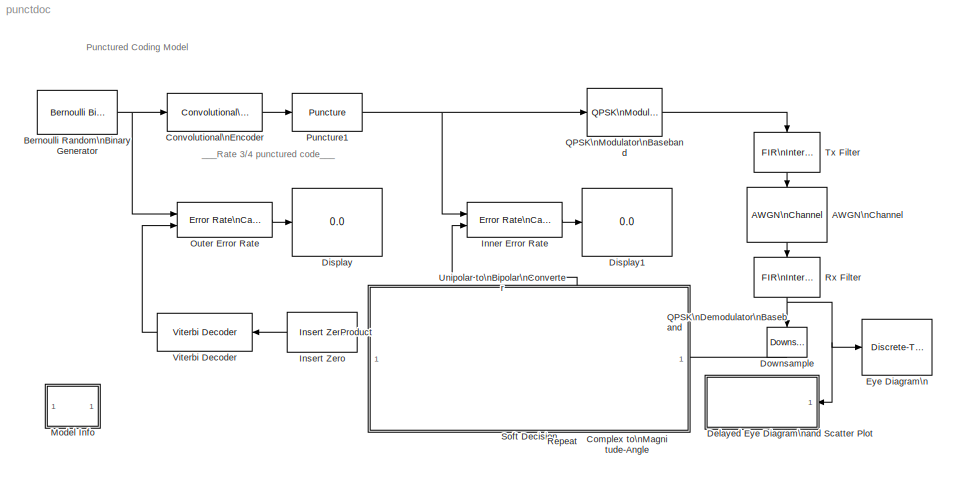
MODEL punctdoc
KIND model
BLOCK [Reference]  Unipolar to\nBipolar\nConverter  REF=commutil2/Unipolar to\nBipolar\nConverter
  M = 2
  Ports = [1, 1]
  ShowPortLabels = on
  SourceBlock = commutil2/Unipolar to\nBipolar\nConverter
  SourceType = Unipolar to Bipolar Converter
  polarity = Negative
BLOCK [Reference] AWGN\nChannel  REF=commchan2/AWGN\nChannel
  EbNodB = 10
  EsNodB = 7
  Ports = [1, 1]
  Ps = 1/8
  SNRdB = 10
  ShowPortLabels = on
  SourceBlock = commchan2/AWGN\nChannel
  SourceType = AWGN Channel
  Tsym = 3/2*5.5e-5
  bitsPerSym = 1
  noiseMode = Signal to noise ratio  (Es/No)
  seed = 123456
  variance = 1
BLOCK [Reference] Bernoulli Random\nBinary Generator  REF=commrandsrc2/Bernoulli Binary\nGenerator
  P = 0.5
  Ports = [0, 1]
  ShowPortLabels = on
  SourceBlock = commrandsrc2/Bernoulli Binary\nGenerator
  SourceType = Bernoulli Binary Generator
  Ts = 5.5e-5
  frameBased = on
  orient = off
  sampPerFrame = 3
  seed = 101
BLOCK [ComplexToMagnitudeAngle] Complex to\nMagnitude-Angle
  Output = Magnitude
  Ports = [1, 1]
BLOCK [Reference] Convolutional\nEncoder  REF=commcnvcod2/Convolutional\nEncoder
  Ports = [1, 1]
  SourceBlock = commcnvcod2/Convolutional\nEncoder
  SourceType = Convolutional Encoder
  reset = None
  trellis = poly2trellis(7, [171 133])
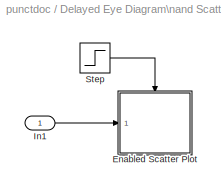
BLOCK [SubSystem] Delayed Eye Diagram\nand Scatter Plot
  EnableExecutionContextPropagation = on
  MaskDisplay = disp('Delayed Scatter Plot');
  MaskIconFrame = on
  MaskIconOpaque = on
  MaskIconRotate = none
  MaskIconUnits = autoscale
  MinAlgLoopOccurrences = off
  Ports = [1]
  TreatAsAtomicUnit = off
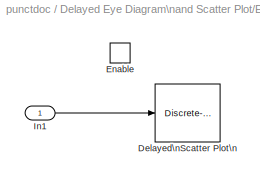
BLOCK [SubSystem] Delayed Eye Diagram\nand Scatter Plot/Enabled Scatter Plot
  EnableExecutionContextPropagation = on
  MinAlgLoopOccurrences = off
  Ports = [1, 0, 1]
  TreatAsAtomicUnit = on
BLOCK [Reference] Delayed Eye Diagram\nand Scatter Plot/Enabled Scatter Plot/Delayed\nScatter Plot\n  REF=commsink2/Discrete-Time\nScatter Plot\nScope
  AxisGrid = on
  FigPos = [435 333 358 358]
  FrameNumber = off
  LineColors = b
  LineMarkers = .
  Ports = [1]
  ShowPortLabels = on
  SourceBlock = commsink2/Discrete-Time\nScatter Plot\nScope
  SourceType = Discrete-Time Scatter Plot Scope
  Tag = ScatterPlot
  block_type_ = scatter
  fading = off
  figTitle = Scatter Plot
  inphaseLabel = In-phase Amplitude
  numLinesMax = 50
  numNewFrames = 400
  numTraces = 1000
  offsetEye = 0
  openScopeAtSimStart = on
  quadratureLabel = Quadrature Amplitude
  render = off
  sampPerSymb = 8
  xMax = 1.5
  xMin = -1.5
  yMax = 1.5
  yMin = -1.5
BLOCK [EnablePort] Delayed Eye Diagram\nand Scatter Plot/Enabled Scatter Plot/Enable
  Ports = []
BLOCK [Inport] Delayed Eye Diagram\nand Scatter Plot/Enabled Scatter Plot/In1
  IconDisplay = Port number
  LatchInput = off
BLOCK [Inport] Delayed Eye Diagram\nand Scatter Plot/In1
  IconDisplay = Port number
  LatchInput = off
BLOCK [Step] Delayed Eye Diagram\nand Scatter Plot/Step
  SampleTime = 5.5e-5
  Time = 3/2*5.5e-5*6
BLOCK [Display] Display
  Decimation = 1
  Ports = [1]
BLOCK [Display] Display1
  Decimation = 1
  Ports = [1]
BLOCK [Reference] Downsample  REF=dspsigops/Downsample
  N = 8
  Ports = [1, 1]
  SourceBlock = dspsigops/Downsample
  SourceType = Downsample
  fmode = Maintain input frame size
  ic = 0
  phase = 0
  smode = Allow multirate
BLOCK [Reference] Eye Diagram\n  REF=commsink2/Discrete-Time\nEye Diagram\nScope
  AxisGrid = on
  FigPos = figposition([2.5 55 35 35]);
  FrameNumber = off
  LineColors = r
  LineStyles = -
  Ports = [1]
  ShowPortLabels = on
  SourceBlock = commsink2/Discrete-Time\nEye Diagram\nScope
  SourceType = Discrete-Time Eye Diagram Scope
  Tag = EyeDiagram
  block_type_ = eye
  dispDiagram = In-phase and Quadrature
  dupPoints = on
  fading = on
  figTitle = Eye Diagram
  inphaseLabel = In-phase Amplitude
  numLinesMax = 50
  numNewFrames = 10
  numTraces = 40
  offsetEye = 0
  openScopeAtSimStart = off
  quadratureLabel = Quadrature Amplitude
  render = on
  sampPerSymb = 8
  symbPerTrace = 1
  yMax = 1.5
  yMin = -1.5
BLOCK [Reference] Inner Error Rate  REF=commsink2/Error Rate\nCalculation
  N = (3/2+3/2+1)*4
  PMode = Port
  Ports = [2, 1]
  RsMode2 = off
  SourceBlock = commsink2/Error Rate\nCalculation
  SourceType = Error Rate Calculation
  WsName = ErrorVec
  cp_mode = Entire frame
  maxBits = 1e6
  numErr = 300
  st_delay = 0
  stop = off
  subframe = []
BLOCK [Reference] Insert Zero  REF=commsequence2/Insert Zero
  Ports = [1, 1]
  SourceBlock = commsequence2/Insert Zero
  SourceType = Insert Zero
  insertZeroVector = [1 1 0 1 1 0].'
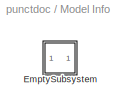
BLOCK [SubSystem] Model Info
  CopyFcn = slcm CopyBlock;
  DeleteFcn = slcm Cancel;
  EnableExecutionContextPropagation = on
  InitFcn = slcm('UpdateAllCMBlocksInThisModelInit')
  LoadFcn = slcm LoadBlock;
  MaskCallbackString = ||||||||||||||||||||||||||||||
  MaskDescription = This block allows revision control information to be displayed within the model.
  MaskDisplay = text(str2num(LeftAlignmentValue), 0.5, MaskDisplayString, 'HorizontalAlignment', HorizontalTextAlignment)\n
  MaskEnableString = on,on,on,on,on,on,on,on,on,on,on,on,on,on,on,on,on,on,on,on,on,on,on,on,on,on,on,on,on,on,on
  MaskIconFrame = on
  MaskIconOpaque = on
  MaskIconRotate = none
  MaskIconUnits = normalized
  MaskPromptString = InitialSaveTempField|InitialBlockCM|BlockCM|Frame|SaveTempField|DisplayStringWithTags|MaskDisplayString|HorizontalTextAlignment|LeftAlignmentValue|SourceBlockDiagram|TagMaxNumber|CMTag1|CMTag2|CMTag3|CMTag4|CMTag5|CMTag6|CMTag7|CMTag8|CMTag9|CMTag10|CMTag11|CMTag12|CMTag13|CMTag14|CMTag15|CMTag16|CMTag17|CMTag18|CMTag19|CMTag20
  MaskSelfModifiable = on
  MaskStyleString = edit,edit,edit,edit,edit,edit,edit,edit,edit,edit,edit,edit,edit,edit,edit,edit,edit,edit,edit,edit,edit,edit,edit,edit,edit,edit,edit,edit,edit,edit,edit
  MaskTabNameString = ,,,,,,,,,,,,,,,,,,,,,,,,,,,,,,
  MaskToolTipString = on,on,on,on,on,on,on,on,on,on,on,on,on,on,on,on,on,on,on,on,on,on,on,on,on,on,on,on,on,on,on
  MaskTunableValueString = on,on,on,on,on,on,on,on,on,on,on,on,on,on,on,on,on,on,on,on,on,on,on,on,on,on,on,on,on,on,on
  MaskType = CMBlock
  MaskValueString = |none|none|on||Info|Info|Center|0.5|punctdoc|20||||||||||||||||||||
  MaskVarAliasString = ,,,,,,,,,,,,,,,,,,,,,,,,,,,,,,
  MaskVariables = InitialSaveTempField=&1;InitialBlockCM=&2;BlockCM=&3;Frame=&4;SaveTempField=&5;DisplayStringWithTags=&6;MaskDisplayString=&7;HorizontalTextAlignment=&8;LeftAlignmentValue=&9;SourceBlockDiagram=&10;TagMaxNumber=@11;CMTag1=&12;CMTag2=&13;CMTag3=&14;CMTag4=&15;CMTag5=&16;CMTag6=&17;CMTag7=&18;CMTag8=&19;CMTag9=&20;CMTag10=&21;CMTag11=&22;CMTag12=&23;CMTag13=&24;CMTag14=&25;CMTag15=&26;CMTag16=&27;CMT...<+45ch>
  MaskVisibilityString = off,off,off,off,off,off,off,off,off,off,off,off,off,off,off,off,off,off,off,off,off,off,off,off,off,off,off,off,off,off,off
  MinAlgLoopOccurrences = off
  NameChangeFcn = slcm Rename;
  OpenFcn = commdemohelp;
  Ports = []
  PostSaveFcn = slcm('UpdateAllCMBlocksInThisModel')
  TreatAsAtomicUnit = off
BLOCK [SubSystem] Model Info/EmptySubsystem
  EnableExecutionContextPropagation = on
  MinAlgLoopOccurrences = off
  Ports = []
  TreatAsAtomicUnit = off
BLOCK [Reference] Outer Error Rate  REF=commsink2/Error Rate\nCalculation
  N = (3/2+3/2+1)*3+96
  PMode = Port
  Ports = [2, 1]
  RsMode2 = off
  SourceBlock = commsink2/Error Rate\nCalculation
  SourceType = Error Rate Calculation
  WsName = ErrorVec
  cp_mode = Entire frame
  maxBits = 1e6
  numErr = 50
  st_delay = 0
  stop = on
  subframe = []
BLOCK [Product] Product
  Ports = [2, 1]
  RndMeth = Floor
BLOCK [Reference] Puncture1  REF=commsequence2/Puncture
  Ports = [1, 1]
  SourceBlock = commsequence2/Puncture
  SourceType = Puncture
  punctureVector = [1 1 0 1 1 0].'
BLOCK [Reference] QPSK\nDemodulator\nBaseband  REF=commdigbbndpm2/QPSK\nDemodulator\nBaseband
  Dec = Gray
  OutType = Bit
  Ph = pi/4
  Ports = [1, 1]
  ShowPortLabels = on
  SourceBlock = commdigbbndpm2/QPSK\nDemodulator\nBaseband
  SourceType = QPSK Demodulator Baseband
  numSamp = 1
BLOCK [Reference] QPSK\nModulator\nBaseband  REF=commdigbbndpm2/QPSK\nModulator\nBaseband
  Enc = Gray
  InType = Bit
  Ph = pi/4
  Ports = [1, 1]
  ShowPortLabels = on
  SourceBlock = commdigbbndpm2/QPSK\nModulator\nBaseband
  SourceType = QPSK Modulator Baseband
  numSamp = 1
BLOCK [Reference] Repeat  REF=dspsigops/Repeat
  N = 2
  Ports = [1, 1]
  SourceBlock = dspsigops/Repeat
  SourceType = Repeat
  ic = 0
  mode = Maintain input frame rate
BLOCK [Reference] Rx Filter  REF=dspmlti3/FIR\nInterpolation
  L = 1
  Ports = [1, 1]
  SourceBlock = dspmlti3/FIR\nInterpolation
  SourceType = FIR Interpolation
  accumFracLength = 30
  accumMode = Inherit via internal rule
  accumWordLength = 32
  additionalParams = off
  allowOverrides = on
  firstCoeffFracLength = 15
  firstCoeffMode = Same word length as input
  firstCoeffWordLength = 16
  framing = Maintain input frame size
  h = rcosine(1, 8, 'sqrt', 0.5,3)
  outputBufInitCond = 0
  outputFracLength = 15
  outputMode = Same as accumulator
  outputWordLength = 16
  overflowMode = off
  prodOutputFracLength = 30
  prodOutputMode = Inherit via internal rule
  prodOutputWordLength = 32
  roundingMode = Floor
BLOCK [SubSystem] Soft Decision
  EnableExecutionContextPropagation = on
  MaskDisplay = disp('')
  MaskIconFrame = on
  MaskIconOpaque = on
  MaskIconRotate = none
  MaskIconUnits = autoscale
  MinAlgLoopOccurrences = off
  Ports = []
  TreatAsAtomicUnit = off
BLOCK [Reference] Tx Filter  REF=dspmlti3/FIR\nInterpolation
  L = 8
  Ports = [1, 1]
  SourceBlock = dspmlti3/FIR\nInterpolation
  SourceType = FIR Interpolation
  accumFracLength = 30
  accumMode = Inherit via internal rule
  accumWordLength = 32
  additionalParams = off
  allowOverrides = on
  firstCoeffFracLength = 15
  firstCoeffMode = Same word length as input
  firstCoeffWordLength = 16
  framing = Maintain input frame size
  h = rcosine(1, 8, 'sqrt', 0.5,3)
  outputBufInitCond = 0
  outputFracLength = 15
  outputMode = Same as accumulator
  outputWordLength = 16
  overflowMode = off
  prodOutputFracLength = 30
  prodOutputMode = Inherit via internal rule
  prodOutputWordLength = 32
  roundingMode = Floor
BLOCK [Reference] Viterbi Decoder  REF=commcnvcod2/Viterbi Decoder
  Ports = [1, 1]
  SourceBlock = commcnvcod2/Viterbi Decoder
  SourceType = Viterbi Decoder
  dectype = Unquantized
  nsdecb = 4
  opmode = Continuous
  reset = off
  tbdepth = 96
  trellis = poly2trellis(7, [171 133])
ANNOTATION (root): Punctured Coding Model
ANNOTATION (root): ___Rate 3/4 punctured code___
LINE  Unipolar to\nBipolar\nConverter:1 -> Product:1
LINE AWGN\nChannel:1 -> Rx Filter:1
NET Bernoulli Random\nBinary Generator:1 -> Convolutional\nEncoder:1, Outer Error Rate:1
LINE Complex to\nMagnitude-Angle:1 -> Repeat:1
LINE Convolutional\nEncoder:1 -> Puncture1:1
LINE Delayed Eye Diagram\nand Scatter Plot/Enabled Scatter Plot/In1:1 -> Delayed Eye Diagram\nand Scatter Plot/Enabled Scatter Plot/Delayed\nScatter Plot\n:1
LINE Delayed Eye Diagram\nand Scatter Plot/In1:1 -> Delayed Eye Diagram\nand Scatter Plot/Enabled Scatter Plot:1
LINE Delayed Eye Diagram\nand Scatter Plot/Step:1 -> Delayed Eye Diagram\nand Scatter Plot/Enabled Scatter Plot:enable
NET Downsample:1 -> Complex to\nMagnitude-Angle:1, QPSK\nDemodulator\nBaseband:1
LINE Inner Error Rate:1 -> Display1:1
LINE Insert Zero:1 -> Viterbi Decoder:1
LINE Outer Error Rate:1 -> Display:1
LINE Product:1 -> Insert Zero:1
NET Puncture1:1 -> Inner Error Rate:1, QPSK\nModulator\nBaseband:1
NET QPSK\nDemodulator\nBaseband:1 ->  Unipolar to\nBipolar\nConverter:1, Inner Error Rate:2
LINE QPSK\nModulator\nBaseband:1 -> Tx Filter:1
LINE Repeat:1 -> Product:2
NET Rx Filter:1 -> Delayed Eye Diagram\nand Scatter Plot:1, Downsample:1, Eye Diagram\n:1
LINE Tx Filter:1 -> AWGN\nChannel:1
LINE Viterbi Decoder:1 -> Outer Error Rate:2
note: NET lines group one-source signal fan-out (src -> all destinations, sorted); 1:1 wires keep LINE
